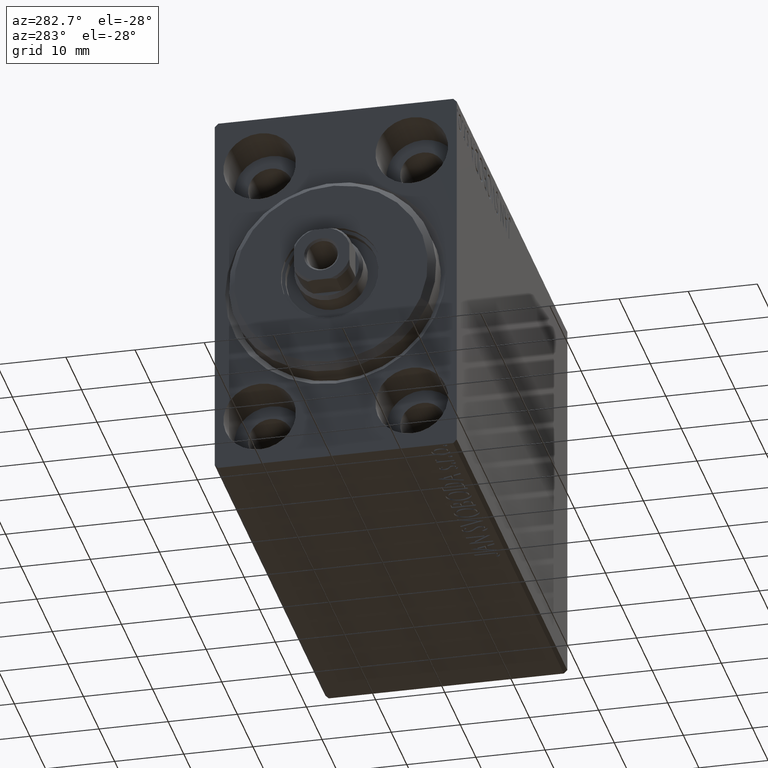
[diagram: clean part render]
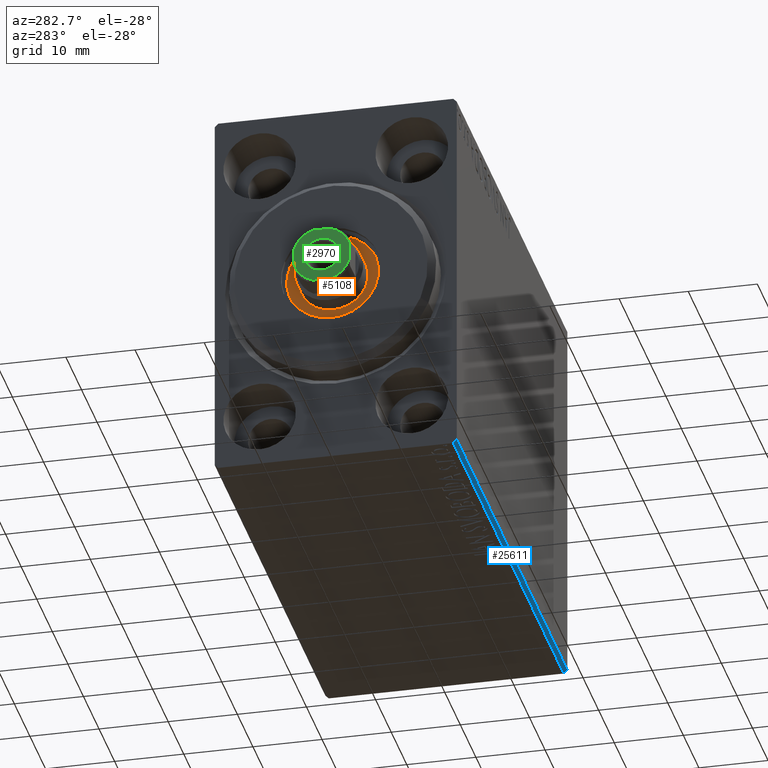
[diagram: same view with three faces highlighted in distinct colors, each labeled with its STEP entity id]
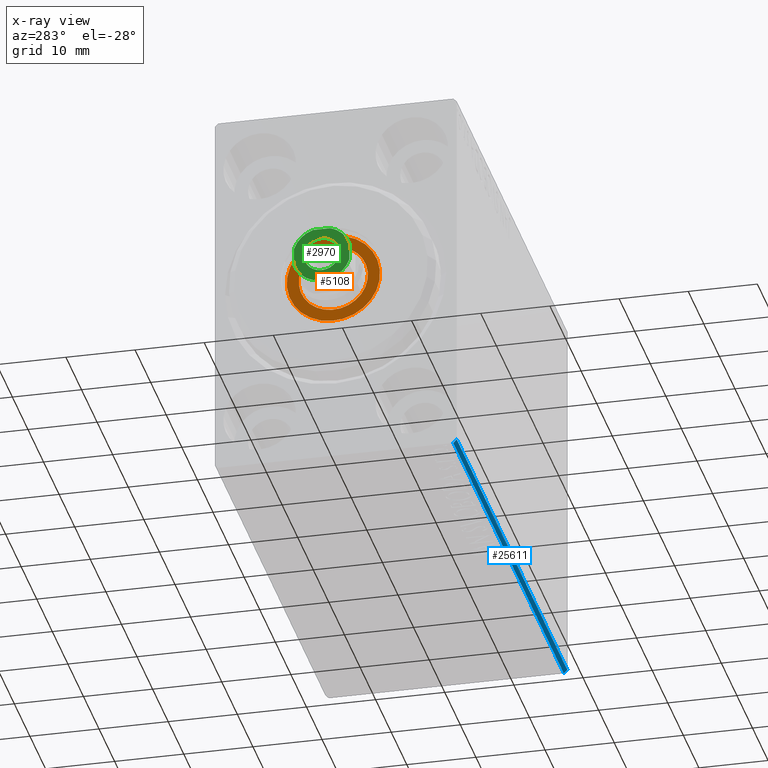
[diagram: x-ray of the same camera — body ghosted, the three highlighted faces saturated]
A machine part, auxiliary view with three faces highlighted in distinct colors.
The next image is the same camera in x-ray (body ghosted, the three faces saturated) — at least one of them is partly hidden behind the body in this view.
Their STEP definitions:

[orange] entity #5108 — the highlighted planar face has unit normal (-1, 0, 0).
#1545 = DIRECTION ( 'NONE',  ( 1.000000000000000000, 0.000000000000000000, 0.000000000000000000 ) ) ;
#1581 = PLANE ( 'NONE',  #42403 ) ;
#3337 = CARTESIAN_POINT ( 'NONE',  ( 1.500000000000000000, 0.000000000000000000, 0.000000000000000000 ) ) ;
#3745 = CARTESIAN_POINT ( 'NONE',  ( 1.500000000000000000, 0.000000000000000000, 6.750000000000000000 ) ) ;
#4444 = DIRECTION ( 'NONE',  ( 0.000000000000000000, 0.000000000000000000, -1.000000000000000000 ) ) ;
#5106 = EDGE_CURVE ( 'NONE', #23395, #11779, #19018, .T. ) ;
#5108 = ADVANCED_FACE ( 'NONE', ( #15982, #8237 ), #1581, .T. ) ;
#5129 = DIRECTION ( 'NONE',  ( 1.000000000000000000, 0.000000000000000000, 0.000000000000000000 ) ) ;
#5559 = DIRECTION ( 'NONE',  ( 0.000000000000000000, 0.000000000000000000, -1.000000000000000000 ) ) ;
#6636 = DIRECTION ( 'NONE',  ( 1.000000000000000000, 0.000000000000000000, 0.000000000000000000 ) ) ;
#8237 = FACE_OUTER_BOUND ( 'NONE', #31674, .T. ) ;
#8638 = AXIS2_PLACEMENT_3D ( 'NONE', #28629, #1545, #4444 ) ;
#8881 = ORIENTED_EDGE ( 'NONE', *, *, #5106, .F. ) ;
#11779 = VERTEX_POINT ( 'NONE', #42746 ) ;
#12874 = DIRECTION ( 'NONE',  ( 0.000000000000000000, 0.000000000000000000, -1.000000000000000000 ) ) ;
#13103 = AXIS2_PLACEMENT_3D ( 'NONE', #23497, #6636, #33715 ) ;
#13537 = DIRECTION ( 'NONE',  ( 1.000000000000000000, 0.000000000000000000, 0.000000000000000000 ) ) ;
#13713 = CIRCLE ( 'NONE', #30735, 6.750000000000000000 ) ;
#14047 = AXIS2_PLACEMENT_3D ( 'NONE', #22212, #5129, #18447 ) ;
#14331 = ORIENTED_EDGE ( 'NONE', *, *, #29528, .F. ) ;
#15943 = CIRCLE ( 'NONE', #13103, 6.750000000000000000 ) ;
#15982 = FACE_BOUND ( 'NONE', #39892, .T. ) ;
#17101 = CARTESIAN_POINT ( 'NONE',  ( 1.499999999999999556, 6.123233995736765296E-16, 5.000000000000000000 ) ) ;
#17127 = CIRCLE ( 'NONE', #8638, 5.000000000000000000 ) ;
#18447 = DIRECTION ( 'NONE',  ( 0.000000000000000000, 0.000000000000000000, -1.000000000000000000 ) ) ;
#19018 = CIRCLE ( 'NONE', #14047, 5.000000000000000000 ) ;
#19997 = ORIENTED_EDGE ( 'NONE', *, *, #39478, .T. ) ;
#20151 = CARTESIAN_POINT ( 'NONE',  ( 1.500000000000000000, 8.266365894244632361E-16, -6.750000000000000000 ) ) ;
#22212 = CARTESIAN_POINT ( 'NONE',  ( 1.499999999999999556, 0.000000000000000000, 0.000000000000000000 ) ) ;
#22426 = DIRECTION ( 'NONE',  ( 1.000000000000000000, 0.000000000000000000, 0.000000000000000000 ) ) ;
#23395 = VERTEX_POINT ( 'NONE', #17101 ) ;
#23497 = CARTESIAN_POINT ( 'NONE',  ( 1.500000000000000000, 0.000000000000000000, 0.000000000000000000 ) ) ;
#25767 = CARTESIAN_POINT ( 'NONE',  ( 1.500000000000000000, 0.000000000000000000, 0.000000000000000000 ) ) ;
#28629 = CARTESIAN_POINT ( 'NONE',  ( 1.499999999999999556, 0.000000000000000000, 0.000000000000000000 ) ) ;
#29528 = EDGE_CURVE ( 'NONE', #11779, #23395, #17127, .T. ) ;
#30735 = AXIS2_PLACEMENT_3D ( 'NONE', #3337, #13537, #12874 ) ;
#31674 = EDGE_LOOP ( 'NONE', ( #19997, #37746 ) ) ;
#33715 = DIRECTION ( 'NONE',  ( 0.000000000000000000, 0.000000000000000000, -1.000000000000000000 ) ) ;
#35243 = EDGE_CURVE ( 'NONE', #36246, #39385, #13713, .T. ) ;
#36246 = VERTEX_POINT ( 'NONE', #20151 ) ;
#37746 = ORIENTED_EDGE ( 'NONE', *, *, #35243, .T. ) ;
#39385 = VERTEX_POINT ( 'NONE', #3745 ) ;
#39478 = EDGE_CURVE ( 'NONE', #39385, #36246, #15943, .T. ) ;
#39892 = EDGE_LOOP ( 'NONE', ( #14331, #8881 ) ) ;
#42403 = AXIS2_PLACEMENT_3D ( 'NONE', #25767, #22426, #5559 ) ;
#42746 = CARTESIAN_POINT ( 'NONE',  ( 1.499999999999999556, 0.000000000000000000, -5.000000000000000000 ) ) ;

[blue] entity #25611 — the highlighted planar face has unit normal (0, 0.7071, 0.7071).
#57 = LINE ( 'NONE', #26919, #42094 ) ;
#138 = DIRECTION ( 'NONE',  ( -0.000000000000000000, 0.7071067811865474617, -0.7071067811865474617 ) ) ;
#3041 = DIRECTION ( 'NONE',  ( 0.000000000000000000, 0.7071067811865475727, 0.7071067811865475727 ) ) ;
#3996 = DIRECTION ( 'NONE',  ( -0.000000000000000000, -0.7071067811865474617, 0.7071067811865474617 ) ) ;
#4922 = EDGE_LOOP ( 'NONE', ( #11992, #11439, #8325, #12213 ) ) ;
#5495 = VERTEX_POINT ( 'NONE', #20756 ) ;
#6164 = EDGE_CURVE ( 'NONE', #32847, #21879, #31076, .T. ) ;
#6548 = CARTESIAN_POINT ( 'NONE',  ( 0.000000000000000000, -17.50000000000000000, -27.00000000000000355 ) ) ;
#6893 = VERTEX_POINT ( 'NONE', #42774 ) ;
#8325 = ORIENTED_EDGE ( 'NONE', *, *, #6164, .F. ) ;
#9520 = VECTOR ( 'NONE', #138, 1000.000000000000114 ) ;
#11439 = ORIENTED_EDGE ( 'NONE', *, *, #17882, .F. ) ;
#11992 = ORIENTED_EDGE ( 'NONE', *, *, #38189, .F. ) ;
#12213 = ORIENTED_EDGE ( 'NONE', *, *, #36571, .F. ) ;
#12791 = CARTESIAN_POINT ( 'NONE',  ( 71.00000000000000000, -17.00000000000000000, -27.50000000000000355 ) ) ;
#16727 = LINE ( 'NONE', #40257, #32705 ) ;
#17882 = EDGE_CURVE ( 'NONE', #21879, #6893, #16727, .T. ) ;
#19053 = VECTOR ( 'NONE', #3996, 1000.000000000000114 ) ;
#20756 = CARTESIAN_POINT ( 'NONE',  ( 71.00000000000000000, -17.00000000000000000, -27.50000000000000355 ) ) ;
#21879 = VERTEX_POINT ( 'NONE', #6548 ) ;
#25611 = ADVANCED_FACE ( 'NONE', ( #33448 ), #33227, .F. ) ;
#26345 = DIRECTION ( 'NONE',  ( -1.000000000000000000, -0.000000000000000000, 0.000000000000000000 ) ) ;
#26727 = DIRECTION ( 'NONE',  ( 1.000000000000000000, 0.000000000000000000, 0.000000000000000000 ) ) ;
#26919 = CARTESIAN_POINT ( 'NONE',  ( 71.00000000000000000, -17.00000000000000000, -27.50000000000000355 ) ) ;
#27657 = CARTESIAN_POINT ( 'NONE',  ( 71.00000000000000000, -22.25000000000000355, -22.25000000000000355 ) ) ;
#31076 = LINE ( 'NONE', #38605, #19053 ) ;
#31122 = DIRECTION ( 'NONE',  ( -1.000000000000000000, 0.000000000000000000, 0.000000000000000000 ) ) ;
#32705 = VECTOR ( 'NONE', #26727, 1000.000000000000000 ) ;
#32847 = VERTEX_POINT ( 'NONE', #35826 ) ;
#33227 = PLANE ( 'NONE',  #41251 ) ;
#33448 = FACE_OUTER_BOUND ( 'NONE', #4922, .T. ) ;
#35826 = CARTESIAN_POINT ( 'NONE',  ( 0.000000000000000000, -17.00000000000000000, -27.50000000000000355 ) ) ;
#36571 = EDGE_CURVE ( 'NONE', #5495, #32847, #57, .T. ) ;
#38189 = EDGE_CURVE ( 'NONE', #6893, #5495, #40749, .T. ) ;
#38605 = CARTESIAN_POINT ( 'NONE',  ( 0.000000000000000000, -17.00000000000000000, -27.50000000000000355 ) ) ;
#40257 = CARTESIAN_POINT ( 'NONE',  ( 71.00000000000000000, -17.50000000000000000, -27.00000000000000355 ) ) ;
#40749 = LINE ( 'NONE', #27657, #9520 ) ;
#41251 = AXIS2_PLACEMENT_3D ( 'NONE', #12791, #3041, #26345 ) ;
#42094 = VECTOR ( 'NONE', #31122, 1000.000000000000000 ) ;
#42774 = CARTESIAN_POINT ( 'NONE',  ( 71.00000000000000000, -17.50000000000000000, -27.00000000000000355 ) ) ;

[green] entity #2970 — the highlighted planar face has unit normal (-1, 0, 0).
#70 = DIRECTION ( 'NONE',  ( 1.000000000000000000, 0.000000000000000000, 0.000000000000000000 ) ) ;
#240 = VERTEX_POINT ( 'NONE', #31512 ) ;
#394 = DIRECTION ( 'NONE',  ( 1.000000000000000000, 0.000000000000000000, 0.000000000000000000 ) ) ;
#437 = VERTEX_POINT ( 'NONE', #6390 ) ;
#1796 = VERTEX_POINT ( 'NONE', #36168 ) ;
#2738 = AXIS2_PLACEMENT_3D ( 'NONE', #32045, #21826, #4742 ) ;
#2970 = ADVANCED_FACE ( 'NONE', ( #3924, #24768 ), #8116, .T. ) ;
#3054 = CARTESIAN_POINT ( 'NONE',  ( -1.280624847486551587, -4.000000000000001776, 75.00000000000001421 ) ) ;
#3538 = CIRCLE ( 'NONE', #22556, 2.550000000000010481 ) ;
#3593 = LINE ( 'NONE', #20244, #35341 ) ;
#3924 = FACE_BOUND ( 'NONE', #31285, .T. ) ;
#4139 = CARTESIAN_POINT ( 'NONE',  ( 0.000000000000000000, 0.000000000000000000, 75.00000000000001421 ) ) ;
#4742 = DIRECTION ( 'NONE',  ( 1.000000000000000000, 0.000000000000000000, 0.000000000000000000 ) ) ;
#5384 = LINE ( 'NONE', #18919, #20788 ) ;
#5564 = EDGE_CURVE ( 'NONE', #240, #34826, #13381, .T. ) ;
#6032 = VERTEX_POINT ( 'NONE', #30424 ) ;
#6390 = CARTESIAN_POINT ( 'NONE',  ( 1.280624847486480533, 3.999999999999999112, 75.00000000000001421 ) ) ;
#6449 = CIRCLE ( 'NONE', #7176, 4.200000000000019718 ) ;
#6602 = ORIENTED_EDGE ( 'NONE', *, *, #15577, .T. ) ;
#7085 = AXIS2_PLACEMENT_3D ( 'NONE', #34132, #30808, #394 ) ;
#7131 = EDGE_LOOP ( 'NONE', ( #12832, #28500, #27689, #30385, #8735, #40653, #30569, #6602 ) ) ;
#7176 = AXIS2_PLACEMENT_3D ( 'NONE', #36922, #9611, #70 ) ;
#7467 = VECTOR ( 'NONE', #23890, 1000.000000000000000 ) ;
#7973 = EDGE_CURVE ( 'NONE', #42291, #6032, #38257, .T. ) ;
#8116 = PLANE ( 'NONE',  #17560 ) ;
#8591 = VERTEX_POINT ( 'NONE', #43065 ) ;
#8633 = EDGE_CURVE ( 'NONE', #6032, #42291, #3538, .T. ) ;
#8735 = ORIENTED_EDGE ( 'NONE', *, *, #34210, .T. ) ;
#9262 = EDGE_CURVE ( 'NONE', #34826, #8591, #3593, .T. ) ;
#9611 = DIRECTION ( 'NONE',  ( -0.000000000000000000, 0.000000000000000000, 1.000000000000000000 ) ) ;
#9948 = DIRECTION ( 'NONE',  ( 1.000000000000000000, 0.000000000000000000, 0.000000000000000000 ) ) ;
#10249 = AXIS2_PLACEMENT_3D ( 'NONE', #27053, #41018, #9948 ) ;
#10351 = CARTESIAN_POINT ( 'NONE',  ( 4.000000000000000888, 3.999999999999999112, 75.00000000000001421 ) ) ;
#10515 = CARTESIAN_POINT ( 'NONE',  ( 0.000000000000000000, 0.000000000000000000, 75.00000000000001421 ) ) ;
#10652 = DIRECTION ( 'NONE',  ( 1.000000000000000000, 0.000000000000000000, 0.000000000000000000 ) ) ;
#10859 = CARTESIAN_POINT ( 'NONE',  ( -2.550000000000010481, 3.122849337825763731E-16, 75.00000000000001421 ) ) ;
#12832 = ORIENTED_EDGE ( 'NONE', *, *, #40376, .T. ) ;
#13381 = CIRCLE ( 'NONE', #2738, 4.199999999999996625 ) ;
#13780 = CARTESIAN_POINT ( 'NONE',  ( -1.280624847486640627, 3.999999999999998224, 75.00000000000001421 ) ) ;
#14164 = AXIS2_PLACEMENT_3D ( 'NONE', #10515, #16744, #37611 ) ;
#15577 = EDGE_CURVE ( 'NONE', #8591, #35543, #6449, .T. ) ;
#16438 = DIRECTION ( 'NONE',  ( -1.000000000000000000, -1.084202172485504434E-16, -0.000000000000000000 ) ) ;
#16744 = DIRECTION ( 'NONE',  ( -0.000000000000000000, 0.000000000000000000, 1.000000000000000000 ) ) ;
#17560 = AXIS2_PLACEMENT_3D ( 'NONE', #4139, #43705, #38310 ) ;
#17799 = VECTOR ( 'NONE', #16438, 1000.000000000000000 ) ;
#18263 = CARTESIAN_POINT ( 'NONE',  ( 4.000000000000000888, 1.280624847486472762, 75.00000000000001421 ) ) ;
#18919 = CARTESIAN_POINT ( 'NONE',  ( -3.999999999999999112, 3.999999999999998224, 75.00000000000001421 ) ) ;
#19143 = VERTEX_POINT ( 'NONE', #18263 ) ;
#20006 = LINE ( 'NONE', #33545, #17799 ) ;
#20204 = EDGE_CURVE ( 'NONE', #19143, #437, #21951, .T. ) ;
#20244 = CARTESIAN_POINT ( 'NONE',  ( -3.999999999999998224, -4.000000000000001776, 75.00000000000001421 ) ) ;
#20788 = VECTOR ( 'NONE', #32464, 1000.000000000000000 ) ;
#21826 = DIRECTION ( 'NONE',  ( -0.000000000000000000, 0.000000000000000000, 1.000000000000000000 ) ) ;
#21951 = CIRCLE ( 'NONE', #14164, 4.199999999999970868 ) ;
#22556 = AXIS2_PLACEMENT_3D ( 'NONE', #30427, #36866, #10652 ) ;
#23344 = EDGE_CURVE ( 'NONE', #437, #24110, #20006, .T. ) ;
#23890 = DIRECTION ( 'NONE',  ( -1.084202172485504434E-16, 1.000000000000000000, -0.000000000000000000 ) ) ;
#24003 = DIRECTION ( 'NONE',  ( 1.000000000000000000, 0.000000000000000000, 0.000000000000000000 ) ) ;
#24110 = VERTEX_POINT ( 'NONE', #13780 ) ;
#24111 = LINE ( 'NONE', #10351, #7467 ) ;
#24768 = FACE_OUTER_BOUND ( 'NONE', #7131, .T. ) ;
#27053 = CARTESIAN_POINT ( 'NONE',  ( 0.000000000000000000, 0.000000000000000000, 75.00000000000001421 ) ) ;
#27689 = ORIENTED_EDGE ( 'NONE', *, *, #23344, .T. ) ;
#28500 = ORIENTED_EDGE ( 'NONE', *, *, #20204, .T. ) ;
#29206 = CARTESIAN_POINT ( 'NONE',  ( 4.000000000000001776, -1.280624847486631301, 75.00000000000001421 ) ) ;
#30385 = ORIENTED_EDGE ( 'NONE', *, *, #37905, .T. ) ;
#30424 = CARTESIAN_POINT ( 'NONE',  ( 2.550000000000010481, 0.000000000000000000, 75.00000000000001421 ) ) ;
#30427 = CARTESIAN_POINT ( 'NONE',  ( 0.000000000000000000, 0.000000000000000000, 75.00000000000001421 ) ) ;
#30569 = ORIENTED_EDGE ( 'NONE', *, *, #9262, .T. ) ;
#30808 = DIRECTION ( 'NONE',  ( 0.000000000000000000, -0.000000000000000000, -1.000000000000000000 ) ) ;
#31285 = EDGE_LOOP ( 'NONE', ( #40873, #40673 ) ) ;
#31512 = CARTESIAN_POINT ( 'NONE',  ( -3.999999999999999112, -1.280624847486561357, 75.00000000000001421 ) ) ;
#32045 = CARTESIAN_POINT ( 'NONE',  ( 0.000000000000000000, 0.000000000000000000, 75.00000000000001421 ) ) ;
#32464 = DIRECTION ( 'NONE',  ( 1.084202172485504434E-16, -1.000000000000000000, 0.000000000000000000 ) ) ;
#33545 = CARTESIAN_POINT ( 'NONE',  ( -3.999999999999999112, 3.999999999999998224, 75.00000000000001421 ) ) ;
#34132 = CARTESIAN_POINT ( 'NONE',  ( 0.000000000000000000, 0.000000000000000000, 75.00000000000001421 ) ) ;
#34210 = EDGE_CURVE ( 'NONE', #1796, #240, #5384, .T. ) ;
#34826 = VERTEX_POINT ( 'NONE', #3054 ) ;
#35341 = VECTOR ( 'NONE', #24003, 1000.000000000000000 ) ;
#35543 = VERTEX_POINT ( 'NONE', #29206 ) ;
#36168 = CARTESIAN_POINT ( 'NONE',  ( -3.999999999999999112, 1.280624847486637519, 75.00000000000001421 ) ) ;
#36866 = DIRECTION ( 'NONE',  ( 0.000000000000000000, -0.000000000000000000, -1.000000000000000000 ) ) ;
#36922 = CARTESIAN_POINT ( 'NONE',  ( 0.000000000000000000, 0.000000000000000000, 75.00000000000001421 ) ) ;
#37611 = DIRECTION ( 'NONE',  ( 1.000000000000000000, 0.000000000000000000, 0.000000000000000000 ) ) ;
#37905 = EDGE_CURVE ( 'NONE', #24110, #1796, #41432, .T. ) ;
#38257 = CIRCLE ( 'NONE', #7085, 2.550000000000010481 ) ;
#38310 = DIRECTION ( 'NONE',  ( 1.000000000000000000, 0.000000000000000000, 0.000000000000000000 ) ) ;
#40376 = EDGE_CURVE ( 'NONE', #35543, #19143, #24111, .T. ) ;
#40653 = ORIENTED_EDGE ( 'NONE', *, *, #5564, .T. ) ;
#40673 = ORIENTED_EDGE ( 'NONE', *, *, #7973, .T. ) ;
#40873 = ORIENTED_EDGE ( 'NONE', *, *, #8633, .T. ) ;
#41018 = DIRECTION ( 'NONE',  ( -0.000000000000000000, 0.000000000000000000, 1.000000000000000000 ) ) ;
#41432 = CIRCLE ( 'NONE', #10249, 4.200000000000019718 ) ;
#42291 = VERTEX_POINT ( 'NONE', #10859 ) ;
#43065 = CARTESIAN_POINT ( 'NONE',  ( 1.280624847486628415, -4.000000000000001776, 75.00000000000001421 ) ) ;
#43705 = DIRECTION ( 'NONE',  ( -0.000000000000000000, 0.000000000000000000, 1.000000000000000000 ) ) ;